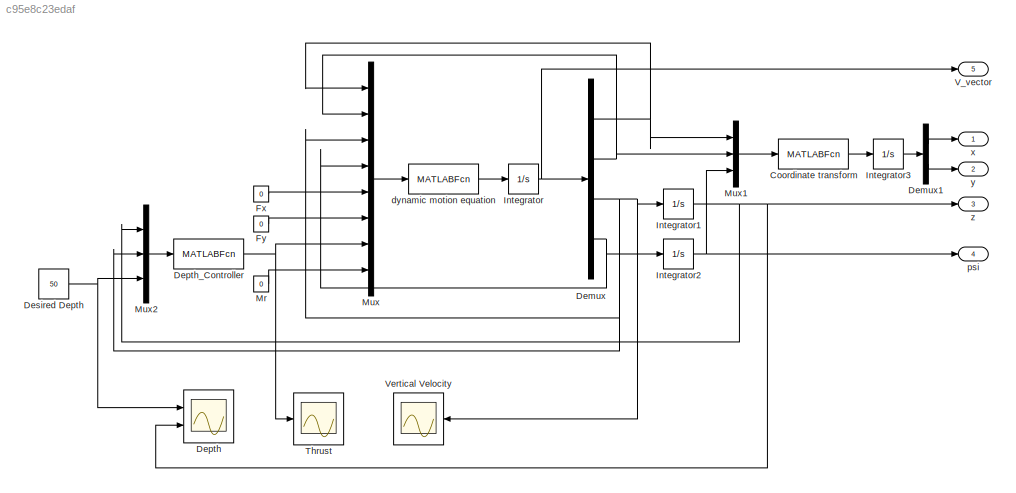
MODEL slx_c95e8c23edaf
KIND model
CONFIG AbsTol = auto
CONFIG EnableMultiTasking = off
CONFIG FixedStep = auto
CONFIG MaxStep = auto
CONFIG MinStep = auto
CONFIG RelTol = 1e-3
CONFIG SampleTimeConstraint = Unconstrained
CONFIG Solver = VariableStepAuto
CONFIG SolverName = VariableStepAuto
CONFIG StartTime = 0.0
CONFIG StopTime = 500
BLOCK [MATLABFcn] Coordinate transform
  MATLABFcn = Coord_Trans
  OutputDimensions = 2
  Ports = [1, 1]
BLOCK [Demux] Demux
  DisplayOption = bar
  Ports = [1, 4]
BLOCK [Demux] Demux1
  DisplayOption = bar
  Outputs = 2
  Ports = [1, 2]
BLOCK [Scope] Depth
  Floating = off
  NumInputPorts = 2
  Ports = [2]
  ScopeSpecificationString = Simulink.scopes.TimeScopeBlockCfg('CurrentConfiguration', extmgr.ConfigurationSet(extmgr.Configuration('Core','General UI',true),extmgr.Configuration('Core','Source UI',true),extmgr.Configuration('Sources','WiredSimulink',true),extmgr.Configuration('Visuals','Time Domain',true,'SerializedDisplays',{struct('MinYLimReal','-6.25','MaxYLimReal','56.25','YLabelReal','','MinYLimMag','0.00000','MaxYLimMa...<+1366ch>
BLOCK [MATLABFcn] Depth_Controller
  MATLABFcn = Depth_Controller
  OutputDimensions = 1
  Ports = [1, 1]
BLOCK [Constant] Desired Depth
  Value = 50
BLOCK [Constant] Fx
  Value = 0
BLOCK [Constant] Fy
  Value = 0
BLOCK [Integrator] Integrator
  Ports = [1, 1]
BLOCK [Integrator] Integrator1
  Ports = [1, 1]
BLOCK [Integrator] Integrator2
  Ports = [1, 1]
BLOCK [Integrator] Integrator3
  Ports = [1, 1]
BLOCK [Constant] Mr
  Value = 0
BLOCK [Mux] Mux
  DisplayOption = bar
  Inputs = 8
  Ports = [8, 1]
BLOCK [Mux] Mux1
  DisplayOption = bar
  Inputs = 3
  Ports = [3, 1]
BLOCK [Mux] Mux2
  DisplayOption = bar
  Inputs = 3
  Ports = [3, 1]
BLOCK [Scope] Thrust
  Floating = off
  NumInputPorts = 1
  Ports = [1]
  ScopeSpecificationString = Simulink.scopes.TimeScopeBlockCfg('CurrentConfiguration', extmgr.ConfigurationSet(extmgr.Configuration('Core','General UI',true),extmgr.Configuration('Core','Source UI',true),extmgr.Configuration('Sources','WiredSimulink',true,'DataLoggingVariableName','ScopeData1'),extmgr.Configuration('Visuals','Time Domain',true,'SerializedDisplays',{struct('MinYLimReal','-21.50394','MaxYLimReal','193.51144','Y...<+1415ch>
BLOCK [Outport] V_vector
  IconDisplay = Port number
  Port = 5
BLOCK [Scope] Vertical Velocity
  Floating = off
  NumInputPorts = 1
  Ports = [1]
  ScopeSpecificationString = Simulink.scopes.TimeScopeBlockCfg('CurrentConfiguration', extmgr.ConfigurationSet(extmgr.Configuration('Core','General UI',true),extmgr.Configuration('Core','Source UI',true),extmgr.Configuration('Sources','WiredSimulink',true,'DataLoggingVariableName','ScopeData2'),extmgr.Configuration('Visuals','Time Domain',true,'SerializedDisplays',{struct('MinYLimReal','-0.08933','MaxYLimReal','0.804','YLabel...<+1389ch>
BLOCK [MATLABFcn] dynamic motion equation
  MATLABFcn = DynMoEqu
  OutputDimensions = 4
  Ports = [1, 1]
BLOCK [Outport] psi
  IconDisplay = Port number
  Port = 4
BLOCK [Outport] x
  IconDisplay = Port number
BLOCK [Outport] y
  IconDisplay = Port number
  Port = 2
BLOCK [Outport] z
  IconDisplay = Port number
  Port = 3
LINE Coordinate transform:1 -> Integrator3:1
LINE Demux1:1 -> x:1
LINE Demux1:2 -> y:1
NET Demux:1 -> Mux1:1, Mux:1
NET Demux:2 -> Mux1:2, Mux:2
NET Demux:3 -> Integrator1:1, Mux2:2, Mux:3, Vertical Velocity:1
NET Demux:4 -> Integrator2:1, Mux:4
NET Depth_Controller:1 -> Mux:7, Thrust:1
NET Desired Depth:1 -> Depth:1, Mux2:3
LINE Fx:1 -> Mux:5
LINE Fy:1 -> Mux:6
NET Integrator1:1 -> Depth:2, Mux2:1, z:1
NET Integrator2:1 -> Mux1:3, psi:1
LINE Integrator3:1 -> Demux1:1
NET Integrator:1 -> Demux:1, V_vector:1
LINE Mr:1 -> Mux:8
LINE Mux1:1 -> Coordinate transform:1
LINE Mux2:1 -> Depth_Controller:1
LINE Mux:1 -> dynamic motion equation:1
LINE dynamic motion equation:1 -> Integrator:1
note: NET lines group one-source signal fan-out (src -> all destinations, sorted); 1:1 wires keep LINE
